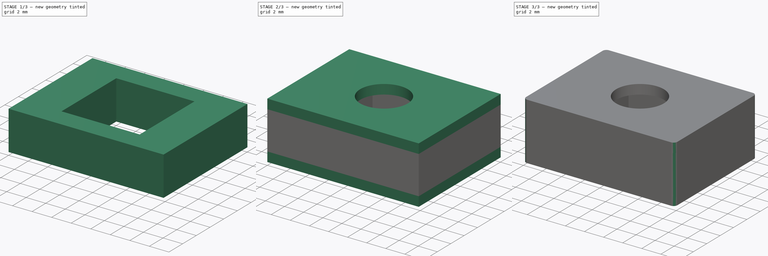
[diagram: build sequence overview — one tinted view per stage of 3, left to right]
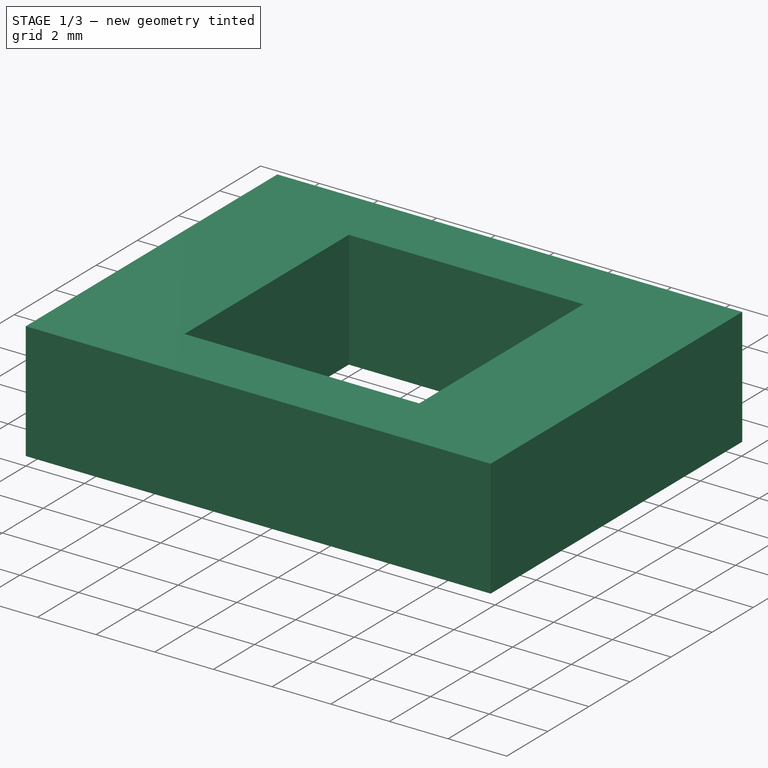
[diagram: stage 1 of 3 — iso view after this stage's code; geometry added in this stage tinted green]
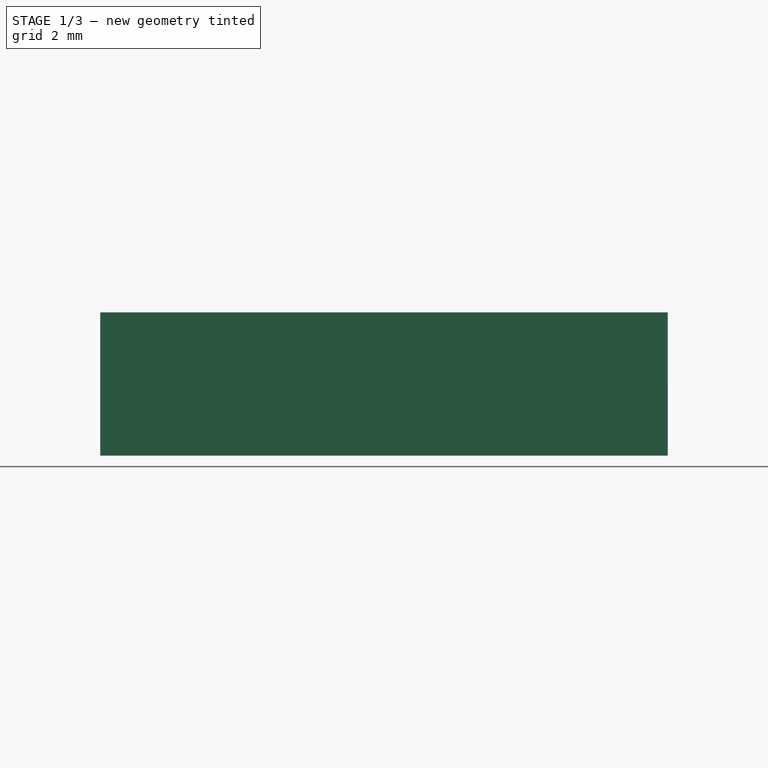
[diagram: stage 1 of 3 — front view after this stage's code; geometry added in this stage tinted green]
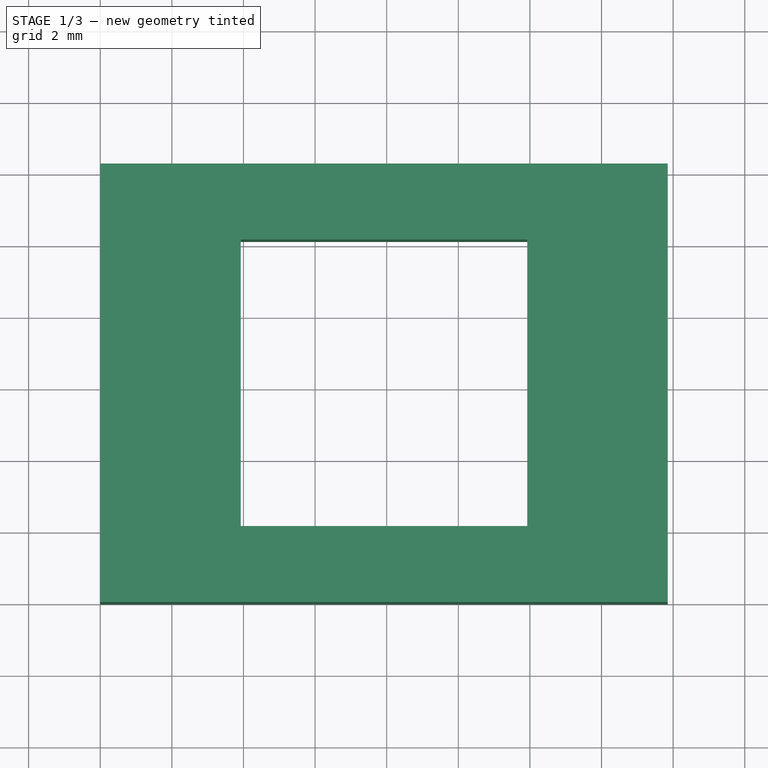
[diagram: stage 1 of 3 — top view after this stage's code; geometry added in this stage tinted green]
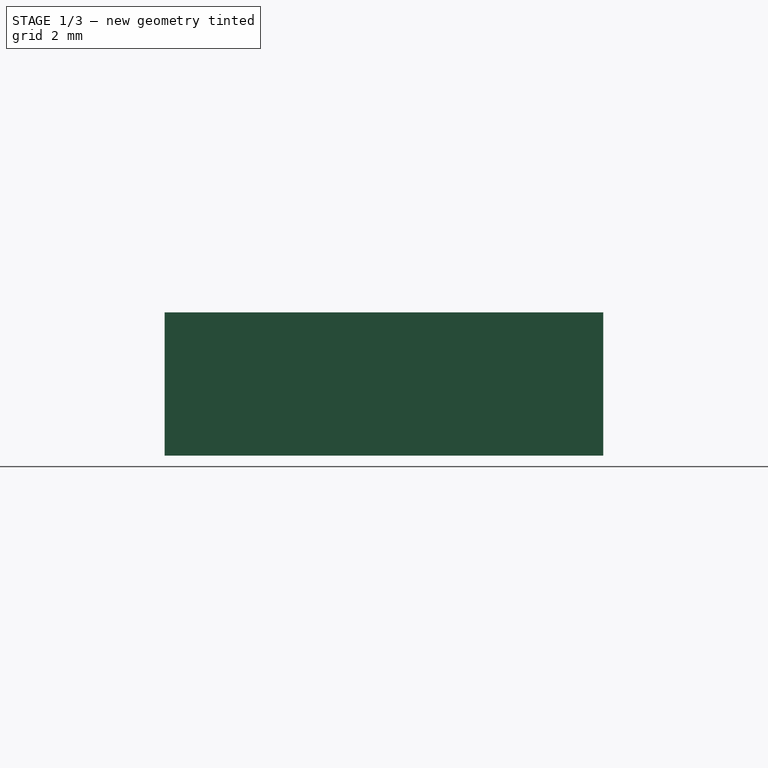
[diagram: stage 1 of 3 — right view after this stage's code; geometry added in this stage tinted green]
FCSTD DOCUMENT  (FreeCAD 0.20RUnknown)
Label: InsertNut_M5_16.85-12.25-6
License: All rights reserved
LicenseURL: http://en.wikipedia.org/wiki/All_rights_reserved
objects: Sketcher::SketchObject×3, Part::Face×3, Part::Extrusion×3, Part::Fuse×2, Part::Fillet×1
note: 12 computed .brp shape members not serialized (recipe doc carries the construction recipe); baked Part::Feature solids carry a one-line shape summary decoded from their .brp

FEATURE [Sketcher::SketchObject] Sketch
  FullyConstrained = true
  sketch-geometry (4):
    g0: LineSegment StartX=0 StartY=0 StartZ=0 EndX=15.85 EndY=0 EndZ=0
    g1: LineSegment StartX=15.85 StartY=0 StartZ=0 EndX=15.85 EndY=12.25 EndZ=0
    g2: LineSegment StartX=15.85 StartY=12.25 StartZ=0 EndX=0 EndY=12.25 EndZ=0
    g3: LineSegment StartX=0 StartY=12.25 StartZ=0 EndX=0 EndY=0 EndZ=0
  constraints (11):
    c: Coincident(g0,g1)
    c: Coincident(g1,g2)
    c: Coincident(g2,g3)
    c: Coincident(g3,g0)
    c: Horizontal(g0)
    c: Horizontal(g2)
    c: Vertical(g1)
    c: Vertical(g3)
    c: Coincident(g0,g-1)
    c: DistanceY(g1,g1) = 12.25
    c: DistanceX(g2,g2) = 15.85
FEATURE [Part::Face] Face
  FaceMakerClass = Part::FaceMakerBullseye
  Sources = -> [Sketch]
FEATURE [Part::Extrusion] Extrude
  Base = -> Sketch
  Dir = (0,0,1)
  DirMode = 2
  FaceMakerClass = Part::FaceMakerBullseye
  LengthFwd = 1
  LengthRev = 0
  Solid = true
  Symmetric = false
FEATURE [Sketcher::SketchObject] Sketch001
  ExternalGeometry = -> [Extrude]
  FullyConstrained = true
  MapMode = 5
  Placement = pos=(0,0,1) rot=(0,0,1;0rad)
  Support = -> [Extrude]
  sketch-geometry (12):
    g0: LineSegment StartX=3.925 StartY=10.125 StartZ=0 EndX=11.925 EndY=10.125 EndZ=0
    g1: LineSegment StartX=11.925 StartY=10.125 StartZ=0 EndX=11.925 EndY=2.125 EndZ=0
    g2: LineSegment StartX=11.925 StartY=2.125 StartZ=0 EndX=3.925 EndY=2.125 EndZ=0
    g3: LineSegment StartX=3.925 StartY=2.125 StartZ=0 EndX=3.925 EndY=10.125 EndZ=0
    g4: LineSegment StartX=11.925 StartY=10.125 StartZ=0 EndX=15.85 EndY=10.125 EndZ=0
    g5: LineSegment StartX=3.925 StartY=10.125 StartZ=0 EndX=0 EndY=10.125 EndZ=0
    g6: LineSegment StartX=11.925 StartY=2.125 StartZ=0 EndX=11.925 EndY=0 EndZ=0
    g7: LineSegment StartX=11.925 StartY=10.125 StartZ=0 EndX=11.925 EndY=12.25 EndZ=0
    g8: LineSegment StartX=15.85 StartY=12.25 StartZ=0 EndX=0 EndY=12.25 EndZ=0
    g9: LineSegment StartX=0 StartY=12.25 StartZ=0 EndX=0 EndY=0 EndZ=0
    g10: LineSegment StartX=0 StartY=0 StartZ=0 EndX=15.85 EndY=0 EndZ=0
    g11: LineSegment StartX=15.85 StartY=0 StartZ=0 EndX=15.85 EndY=12.25 EndZ=0
  constraints (34):
    c: Coincident(g0,g1)
    c: Coincident(g1,g2)
    c: Coincident(g2,g3)
    c: Coincident(g3,g0)
    c: Horizontal(g0)
    c: Horizontal(g2)
    c: Vertical(g1)
    c: Vertical(g3)
    c: DistanceY(g1,g1) = 8
    c: DistanceX(g0,g0) = 8
    c: Coincident(g4,g0)
    c: PointOnObject(g4,g-3)
    c: Horizontal(g4)
    c: Coincident(g5,g0)
    c: PointOnObject(g5,g-2)
    c: Horizontal(g5)
    c: Coincident(g6,g1)
    c: PointOnObject(g6,g-1)
    c: Vertical(g6)
    c: Coincident(g7,g0)
    c: PointOnObject(g7,g-4)
    c: Vertical(g7)
    c: Equal(g4,g5)
    c: Equal(g6,g7)
    c: Coincident(g8,g9)
    c: Coincident(g9,g10)
    c: Coincident(g10,g11)
    c: Coincident(g11,g8)
    c: Horizontal(g8)
    c: Horizontal(g10)
    c: Vertical(g9)
    c: Vertical(g11)
    c: Coincident(g8,g-4)
    c: Coincident(g9,g-1)
FEATURE [Part::Face] Face001
  FaceMakerClass = Part::FaceMakerBullseye
  Sources = -> [Sketch001]
FEATURE [Part::Extrusion] Extrude001
  Base = -> Face001
  Dir = (0,0,1)
  DirMode = 2
  FaceMakerClass = Part::FaceMakerBullseye
  LengthFwd = 4
  LengthRev = 0
  Solid = false
  Symmetric = false
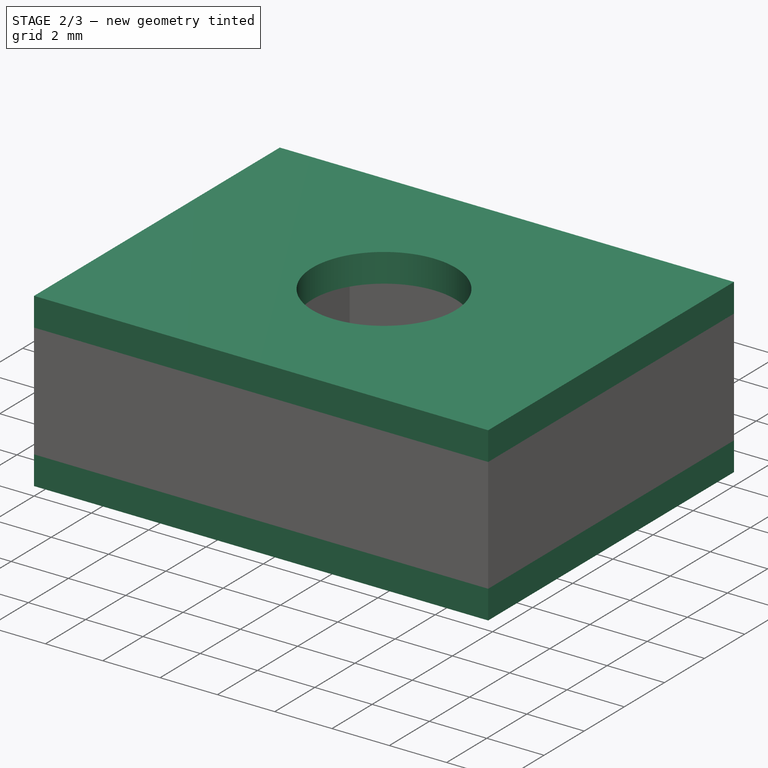
[diagram: stage 2 of 3 — iso view after this stage's code; geometry added in this stage tinted green]
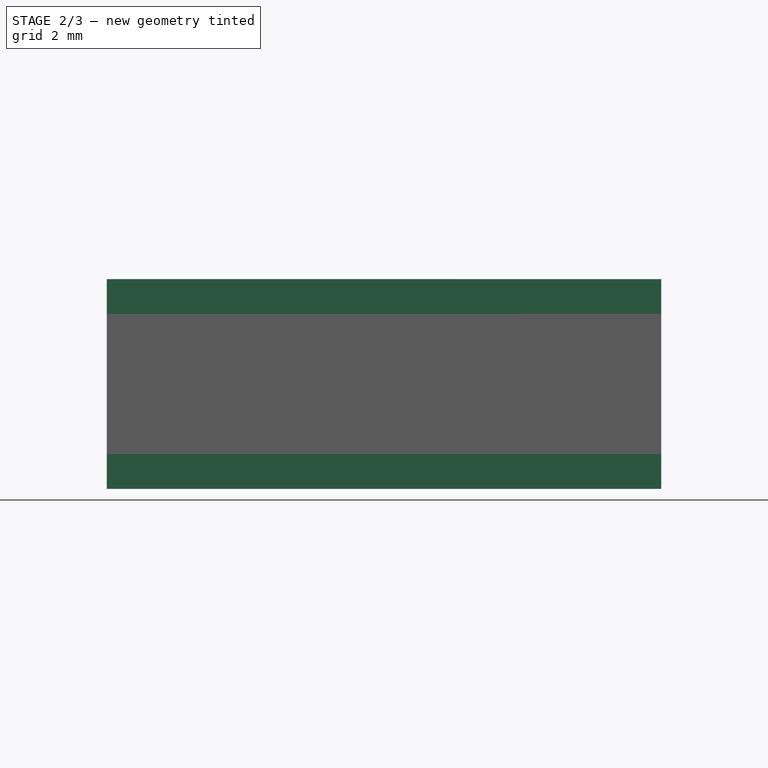
[diagram: stage 2 of 3 — front view after this stage's code; geometry added in this stage tinted green]
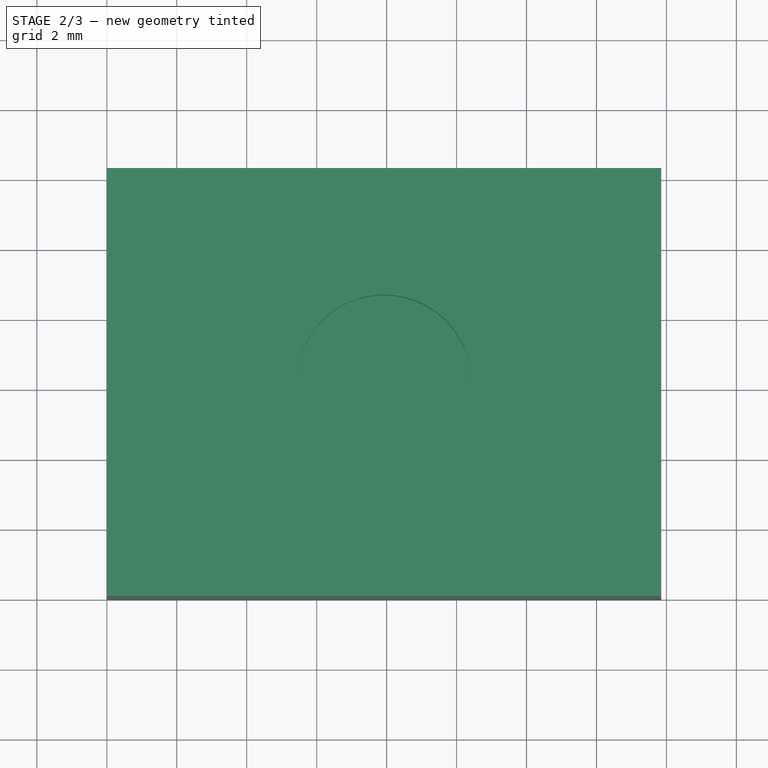
[diagram: stage 2 of 3 — top view after this stage's code; geometry added in this stage tinted green]
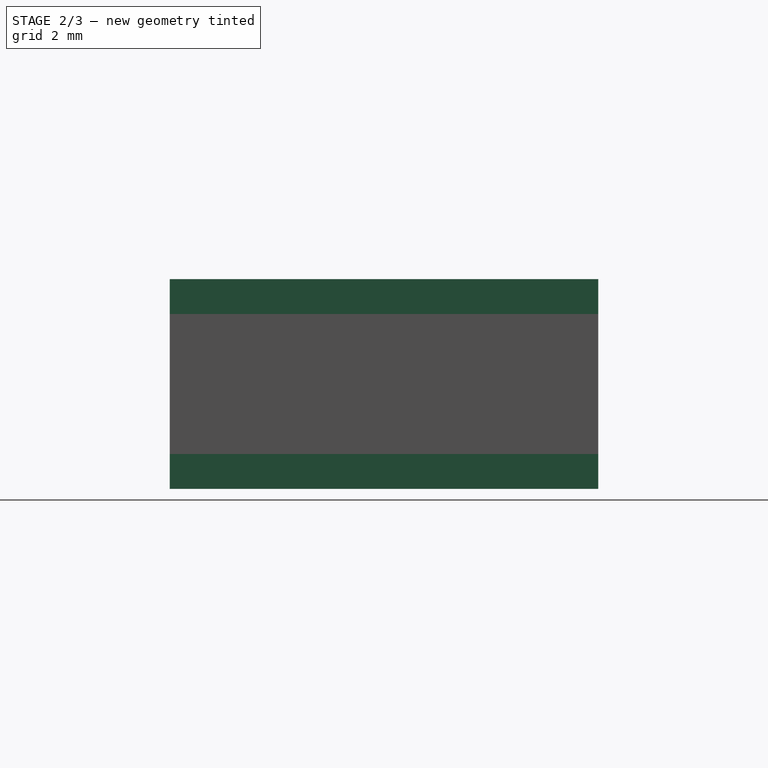
[diagram: stage 2 of 3 — right view after this stage's code; geometry added in this stage tinted green]
FEATURE [Sketcher::SketchObject] Sketch002
  ExternalGeometry = -> [Extrude001]
  FullyConstrained = true
  MapMode = 5
  Placement = pos=(0,0,5) rot=(0,0,1;0rad)
  Support = -> [Extrude001]
  sketch-geometry (7):
    g0: Circle CenterX=7.925 CenterY=6.125 CenterZ=0 NormalX=0 NormalY=0 NormalZ=1 AngleXU=0 Radius=2.5
    g1: LineSegment StartX=0 StartY=0 StartZ=0 EndX=15.85 EndY=12.25 EndZ=0
    g2: LineSegment StartX=15.85 StartY=0 StartZ=0 EndX=0 EndY=12.25 EndZ=0
    g3: LineSegment StartX=15.85 StartY=12.25 StartZ=0 EndX=0 EndY=12.25 EndZ=0
    g4: LineSegment StartX=0 StartY=12.25 StartZ=0 EndX=0 EndY=0 EndZ=0
    g5: LineSegment StartX=0 StartY=0 StartZ=0 EndX=15.85 EndY=0 EndZ=0
    g6: LineSegment StartX=15.85 StartY=0 StartZ=0 EndX=15.85 EndY=12.25 EndZ=0
  constraints (17):
    c: Coincident(g1,g-1)
    c: Coincident(g1,g-4)
    c: Coincident(g2,g-4)
    c: Coincident(g2,g-3)
    c: PointOnObject(g0,g1)
    c: PointOnObject(g0,g2)
    c: Diameter(g0) = 5
    c: Coincident(g3,g4)
    c: Coincident(g4,g5)
    c: Coincident(g5,g6)
    c: Coincident(g6,g3)
    c: Horizontal(g3)
    c: Horizontal(g5)
    c: Vertical(g4)
    c: Vertical(g6)
    c: Coincident(g3,g1)
    c: Coincident(g4,g1)
FEATURE [Part::Face] Face002
  FaceMakerClass = Part::FaceMakerBullseye
  Sources = -> [Sketch002]
FEATURE [Part::Extrusion] Extrude002
  Base = -> Face002
  Dir = (0,0,1)
  DirMode = 2
  FaceMakerClass = Part::FaceMakerBullseye
  LengthFwd = 1
  LengthRev = 0
  Solid = false
  Symmetric = false
FEATURE [Part::Fuse] Fusion
  Base = -> Extrude
  Tool = -> Extrude001
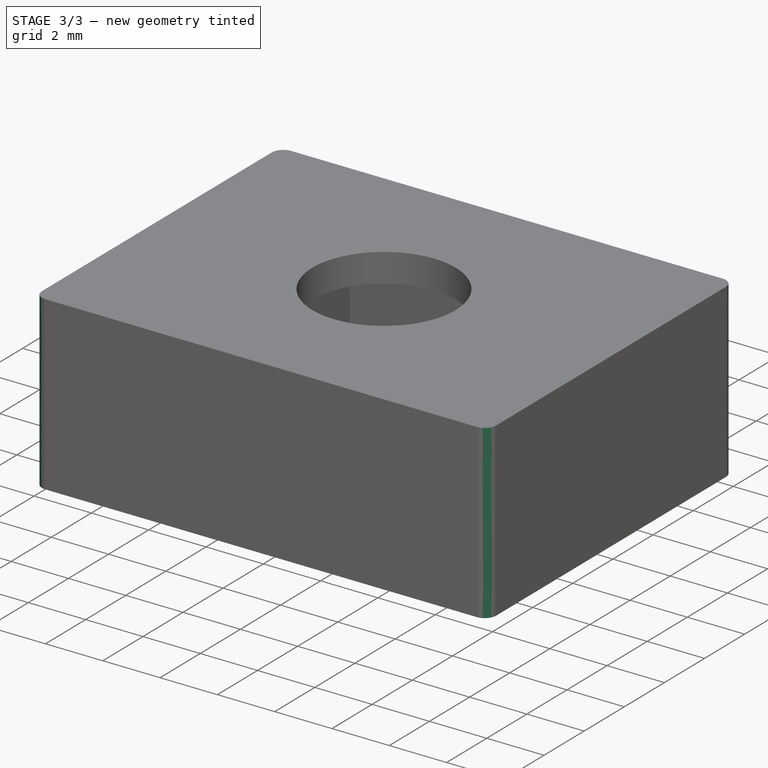
[diagram: stage 3 of 3 — iso view after this stage's code; geometry added in this stage tinted green]
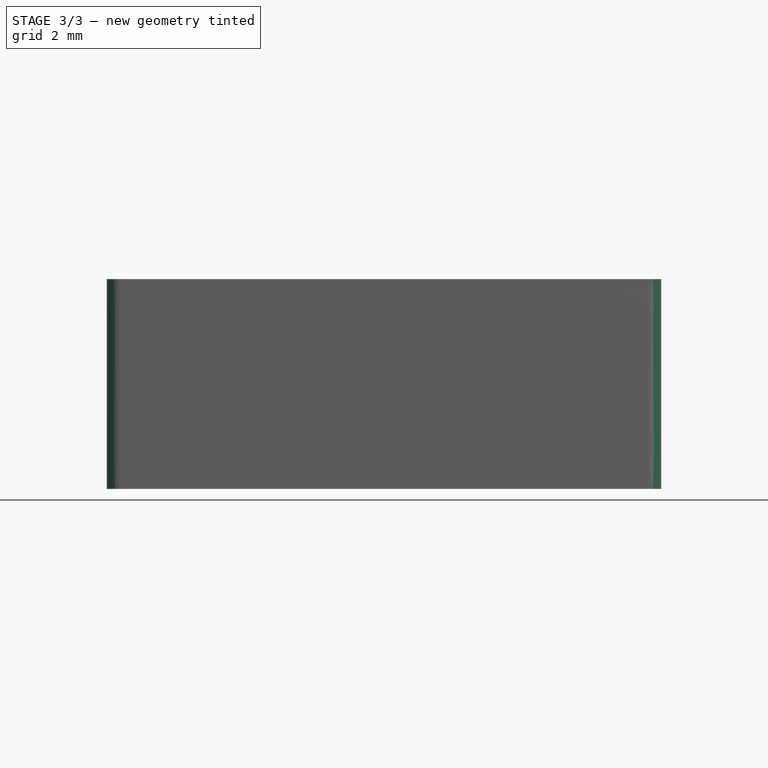
[diagram: stage 3 of 3 — front view after this stage's code; geometry added in this stage tinted green]
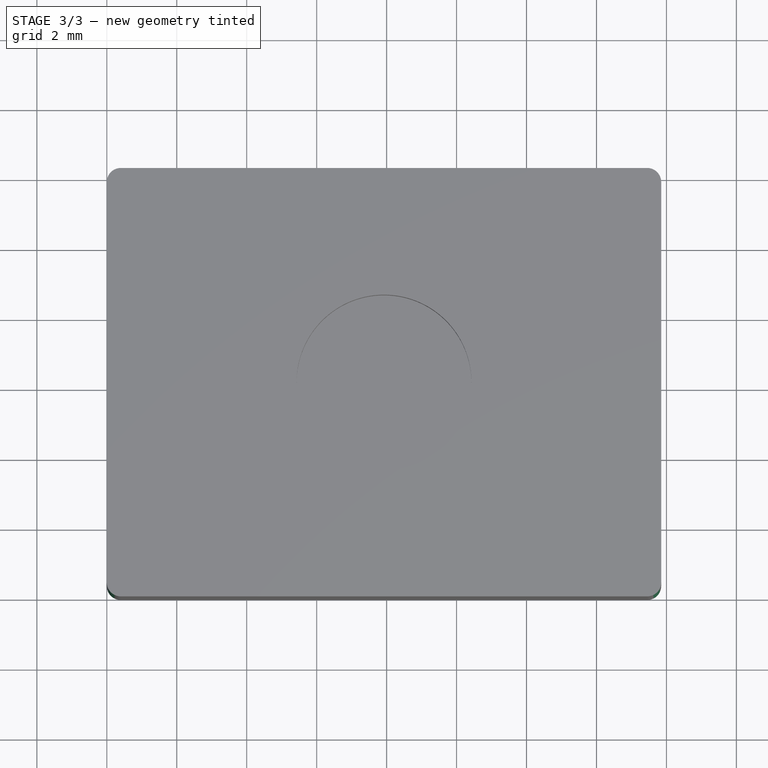
[diagram: stage 3 of 3 — top view after this stage's code; geometry added in this stage tinted green]
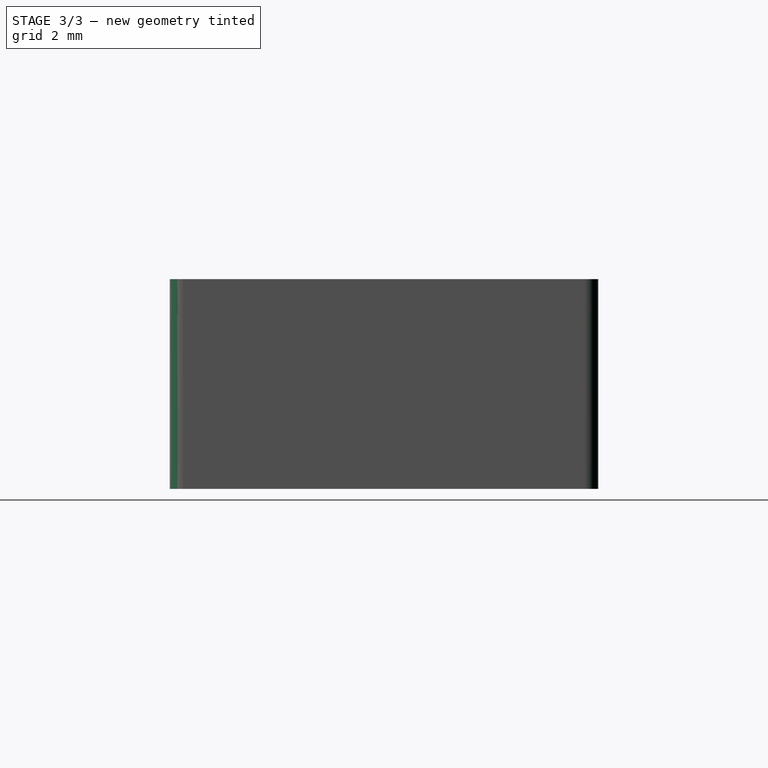
[diagram: stage 3 of 3 — right view after this stage's code; geometry added in this stage tinted green]
FEATURE [Part::Fuse] Fusion001
  Base = -> Extrude002
  Tool = -> Fusion
FEATURE [Part::Fillet] Fillet
  Base = -> Fusion001
  Edges = 12 edges r=0.4: [Edge1,Edge2,Edge5,Edge8,Edge11,Edge12,Edge17,Edge19,Edge21,Edge22,Edge27,Edge29]
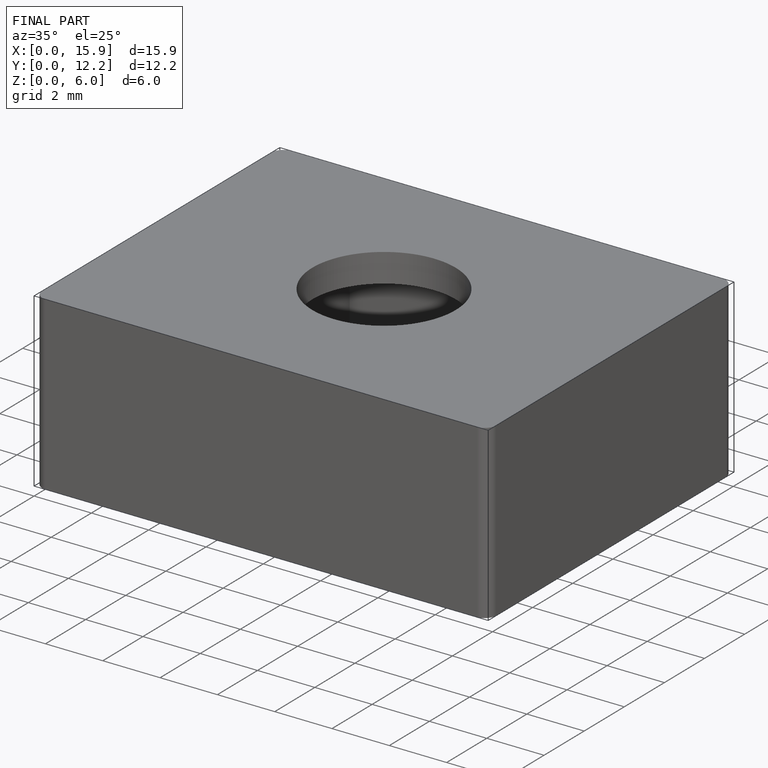
[diagram: finished part — iso view with bounding-box wireframe]
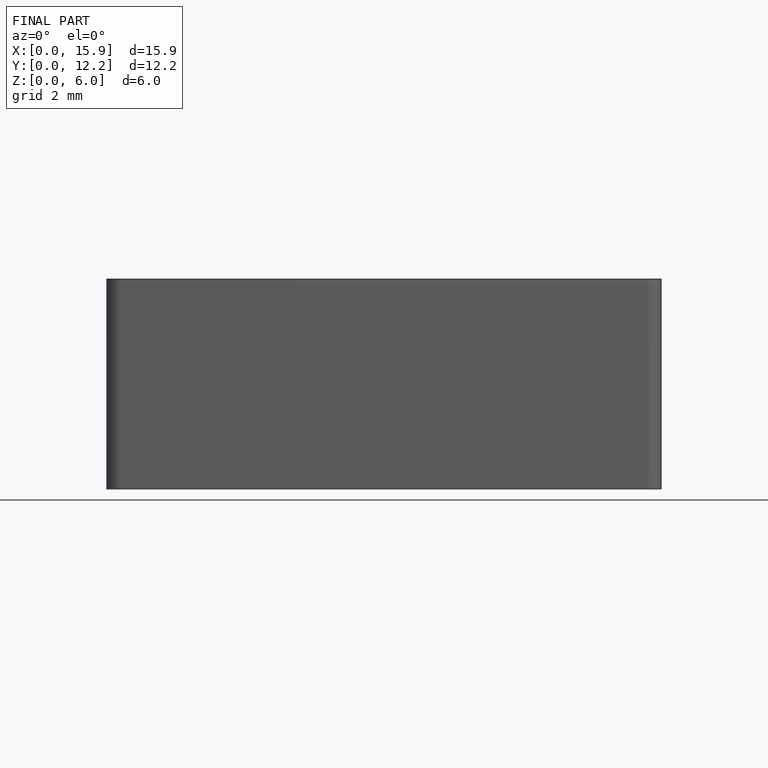
[diagram: finished part — front view with bounding-box wireframe]
